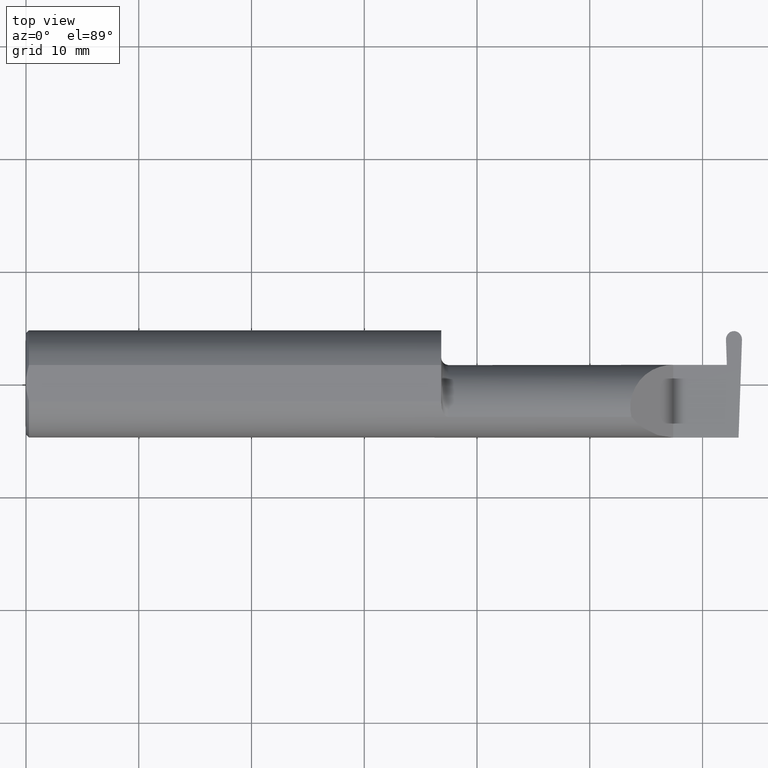
[diagram: clean part render]
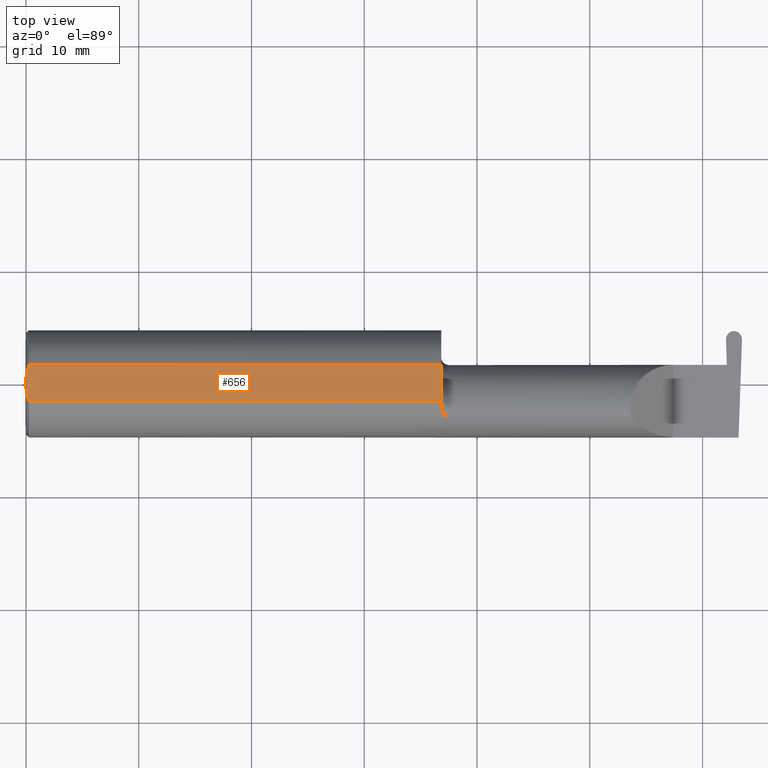
[diagram: same view with one face highlighted and labeled with its STEP entity id]
A machine part, top view. The second image highlights one B-rep face of the part: STEP entity #656.
In plain terms, the highlighted planar face has unit normal (0, 0, 1).
Its self-contained STEP definition (entity closure, byte-faithful):
#10 = CARTESIAN_POINT ( 'NONE',  ( 0.000000000000000000, -0.01880691362238934641, 0.1763499999999999235 ) ) ;
#15 = LINE ( 'NONE', #562, #669 ) ;
#19 = EDGE_CURVE ( 'NONE', #343, #255, #606, .T. ) ;
#37 = VERTEX_POINT ( 'NONE', #10 ) ;
#38 = CARTESIAN_POINT ( 'NONE',  ( 0.000000000000000000, 0.01880691362238934988, 0.1763499999999999235 ) ) ;
#46 = PLANE ( 'NONE',  #55 ) ;
#55 = AXIS2_PLACEMENT_3D ( 'NONE', #434, #106, #109 ) ;
#56 = FACE_OUTER_BOUND ( 'NONE', #394, .T. ) ;
#103 = CARTESIAN_POINT ( 'NONE',  ( 0.01000000000000013205, -0.06325108694718235836, 0.1763499999999999235 ) ) ;
#105 = EDGE_CURVE ( 'NONE', #37, #552, #15, .T. ) ;
#106 = DIRECTION ( 'NONE',  ( 0.000000000000000000, 0.000000000000000000, 1.000000000000000000 ) ) ;
#109 = DIRECTION ( 'NONE',  ( 1.000000000000000000, 0.000000000000000000, -0.000000000000000000 ) ) ;
#113 = DIRECTION ( 'NONE',  ( -5.153652266948881677E-17, 1.000000000000000000, 0.000000000000000000 ) ) ;
#124 = ORIENTED_EDGE ( 'NONE', *, *, #19, .T. ) ;
#148 = B_SPLINE_CURVE_WITH_KNOTS ( 'NONE', 3,
 ( #103, #372, #301, #590 ),
 .UNSPECIFIED., .F., .F.,
 ( 4, 4 ),
 ( 0.009771445421851331775, 0.01092787937989104369 ),
 .UNSPECIFIED. ) ;
#155 = B_SPLINE_CURVE_WITH_KNOTS ( 'NONE', 3,
 ( #38, #253, #647, #700 ),
 .UNSPECIFIED., .F., .F.,
 ( 4, 4 ),
 ( 0.01188664626022242071, 0.01304646959483746725 ),
 .UNSPECIFIED. ) ;
#188 = VECTOR ( 'NONE', #514, 39.37007874015748143 ) ;
#191 = LINE ( 'NONE', #346, #188 ) ;
#209 = EDGE_CURVE ( 'NONE', #255, #453, #191, .T. ) ;
#234 = EDGE_CURVE ( 'NONE', #511, #37, #148, .T. ) ;
#246 = ORIENTED_EDGE ( 'NONE', *, *, #234, .F. ) ;
#253 = CARTESIAN_POINT ( 'NONE',  ( 0.001616639753276021213, 0.03405189565400638246, 0.1763499999999999235 ) ) ;
#255 = VERTEX_POINT ( 'NONE', #362 ) ;
#257 = ORIENTED_EDGE ( 'NONE', *, *, #578, .T. ) ;
#288 = LINE ( 'NONE', #513, #313 ) ;
#293 = DIRECTION ( 'NONE',  ( -0.000000000000000000, 1.000000000000000000, -0.000000000000000000 ) ) ;
#301 = CARTESIAN_POINT ( 'NONE',  ( 0.001595548104417008695, -0.03385300050298640367, 0.1763499999999999235 ) ) ;
#313 = VECTOR ( 'NONE', #400, 39.37007874015748143 ) ;
#328 = CARTESIAN_POINT ( 'NONE',  ( 1.450000000000000178, 0.1873499999999997667, 0.1763499999999999235 ) ) ;
#343 = VERTEX_POINT ( 'NONE', #694 ) ;
#346 = CARTESIAN_POINT ( 'NONE',  ( 0.000000000000000000, 0.06325108694718235836, 0.1763499999999999235 ) ) ;
#349 = ORIENTED_EDGE ( 'NONE', *, *, #630, .F. ) ;
#362 = CARTESIAN_POINT ( 'NONE',  ( 1.450000000000000178, 0.06325108694718235836, 0.1763499999999999235 ) ) ;
#372 = CARTESIAN_POINT ( 'NONE',  ( 0.005151108632379722968, -0.04888864921576022843, 0.1763499999999999235 ) ) ;
#377 = CARTESIAN_POINT ( 'NONE',  ( 0.01000000000000013205, 0.06325108694718235836, 0.1763499999999999235 ) ) ;
#394 = EDGE_LOOP ( 'NONE', ( #257, #124, #582, #349, #466, #246 ) ) ;
#400 = DIRECTION ( 'NONE',  ( 1.000000000000000000, 0.000000000000000000, 0.000000000000000000 ) ) ;
#434 = CARTESIAN_POINT ( 'NONE',  ( 2.876828993045917215, 0.1873499999999998500, 0.1763499999999999235 ) ) ;
#453 = VERTEX_POINT ( 'NONE', #377 ) ;
#466 = ORIENTED_EDGE ( 'NONE', *, *, #105, .F. ) ;
#467 = CARTESIAN_POINT ( 'NONE',  ( 0.01000000000000013205, -0.06325108694718235836, 0.1763499999999999235 ) ) ;
#473 = CARTESIAN_POINT ( 'NONE',  ( 0.000000000000000000, 0.01880691362238934988, 0.1763499999999999235 ) ) ;
#511 = VERTEX_POINT ( 'NONE', #467 ) ;
#513 = CARTESIAN_POINT ( 'NONE',  ( 0.000000000000000000, -0.06325108694718235836, 0.1763499999999999235 ) ) ;
#514 = DIRECTION ( 'NONE',  ( -1.000000000000000000, -0.000000000000000000, -0.000000000000000000 ) ) ;
#520 = VECTOR ( 'NONE', #113, 39.37007874015748143 ) ;
#552 = VERTEX_POINT ( 'NONE', #473 ) ;
#562 = CARTESIAN_POINT ( 'NONE',  ( 0.000000000000000000, 0.1873499999999998500, 0.1763499999999999235 ) ) ;
#578 = EDGE_CURVE ( 'NONE', #511, #343, #288, .T. ) ;
#582 = ORIENTED_EDGE ( 'NONE', *, *, #209, .T. ) ;
#590 = CARTESIAN_POINT ( 'NONE',  ( 0.000000000000000000, -0.01880691362238934641, 0.1763499999999999235 ) ) ;
#606 = LINE ( 'NONE', #328, #520 ) ;
#630 = EDGE_CURVE ( 'NONE', #552, #453, #155, .T. ) ;
#647 = CARTESIAN_POINT ( 'NONE',  ( 0.005155213631852488369, 0.04890080824240059659, 0.1763499999999999235 ) ) ;
#656 = ADVANCED_FACE ( 'NONE', ( #56 ), #46, .T. ) ;
#669 = VECTOR ( 'NONE', #293, 39.37007874015748143 ) ;
#694 = CARTESIAN_POINT ( 'NONE',  ( 1.450000000000000178, -0.06325108694718287183, 0.1763499999999999235 ) ) ;
#700 = CARTESIAN_POINT ( 'NONE',  ( 0.01000000000000013205, 0.06325108694718235836, 0.1763499999999999235 ) ) ;